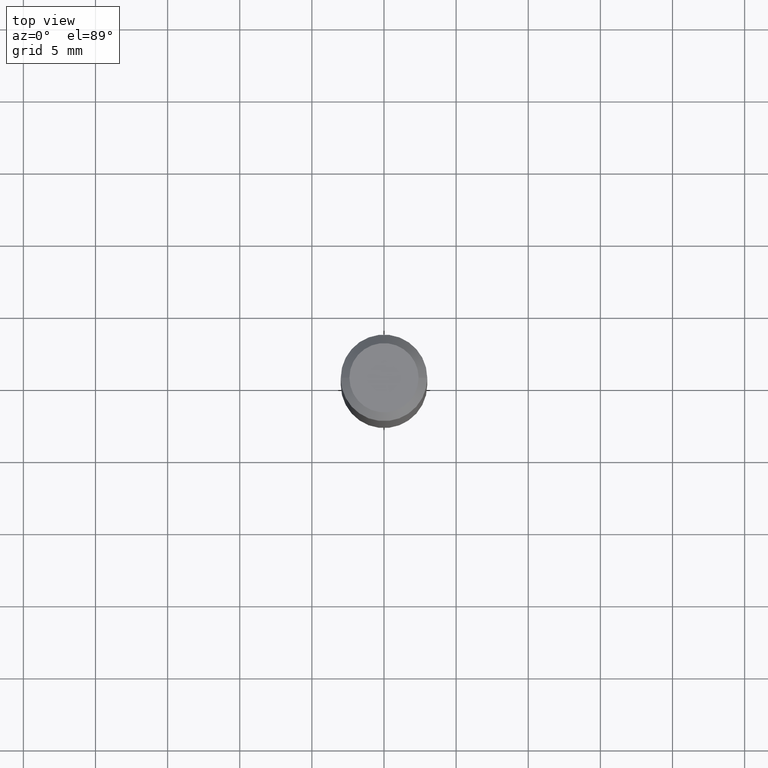
[diagram: clean part render]
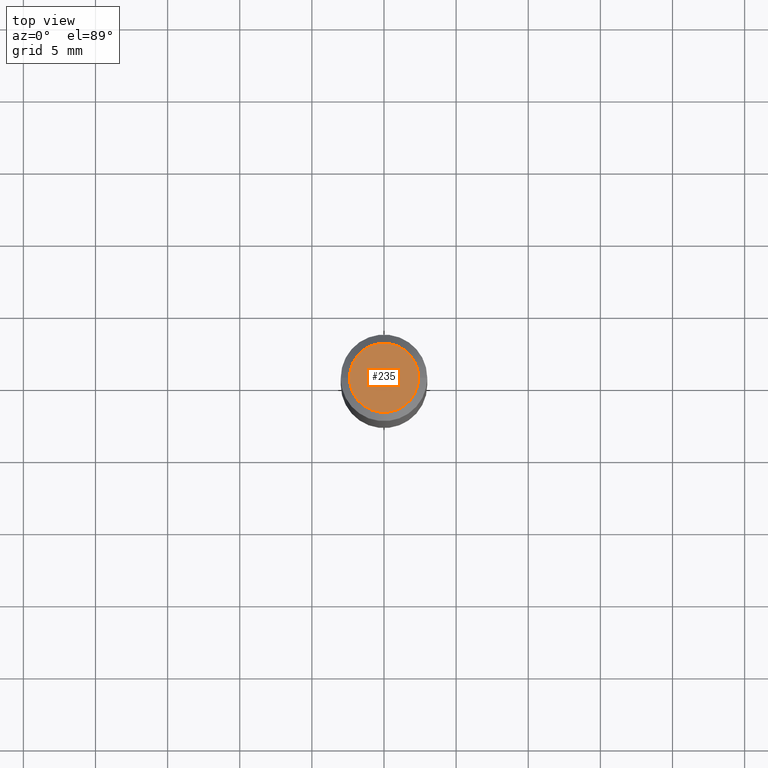
[diagram: same view with one face highlighted and labeled with its STEP entity id]
A machine part, top view. The second image highlights one B-rep face of the part: STEP entity #235.
In plain terms, the highlighted planar face has unit normal (0, -0, -1).
Its self-contained STEP definition (entity closure, byte-faithful):
#34 = DIRECTION ( 'NONE',  ( 2.438088387897960049E-29, -3.491481338843145188E-15, -1.000000000000000000 ) ) ;
#35 = FACE_OUTER_BOUND ( 'NONE', #495, .T. ) ;
#80 = DIRECTION ( 'NONE',  ( 1.000000000000000000, -6.982962677686267499E-15, 4.875432709231658792E-29 ) ) ;
#92 = ORIENTED_EDGE ( 'NONE', *, *, #191, .T. ) ;
#111 = DIRECTION ( 'NONE',  ( -2.445468806185136597E-29, 3.491481338843145583E-15, 1.000000000000000000 ) ) ;
#124 = AXIS2_PLACEMENT_3D ( 'NONE', #518, #353, #80 ) ;
#127 = ORIENTED_EDGE ( 'NONE', *, *, #378, .T. ) ;
#135 = CARTESIAN_POINT ( 'NONE',  ( -0.09447999999999998066, 7.009847083995354710E-16, -3.085620075132147757E-17 ) ) ;
#191 = EDGE_CURVE ( 'NONE', #251, #487, #248, .T. ) ;
#194 = CARTESIAN_POINT ( 'NONE',  ( 0.09447999999999998066, -7.704367267948738690E-16, -3.085620075131172158E-17 ) ) ;
#235 = ADVANCED_FACE ( 'NONE', ( #35 ), #387, .F. ) ;
#248 = CIRCLE ( 'NONE', #382, 0.09447999999999998066 ) ;
#251 = VERTEX_POINT ( 'NONE', #194 ) ;
#270 = CARTESIAN_POINT ( 'NONE',  ( 3.772893820736570314E-46, -5.386692455541008845E-32, -1.542810037565835988E-17 ) ) ;
#301 = CARTESIAN_POINT ( 'NONE',  ( 7.545787641473140628E-46, -1.077338491108201769E-31, -3.085620075131671975E-17 ) ) ;
#348 = DIRECTION ( 'NONE',  ( -1.000000000000000000, 6.982962677686265922E-15, -4.876176775795935793E-29 ) ) ;
#353 = DIRECTION ( 'NONE',  ( -2.445468806185136597E-29, 3.491481338843145583E-15, 1.000000000000000000 ) ) ;
#378 = EDGE_CURVE ( 'NONE', #487, #251, #453, .T. ) ;
#382 = AXIS2_PLACEMENT_3D ( 'NONE', #301, #111, #384 ) ;
#384 = DIRECTION ( 'NONE',  ( 1.000000000000000000, -6.982962677686267499E-15, 4.875432709231658792E-29 ) ) ;
#387 = PLANE ( 'NONE',  #491 ) ;
#453 = CIRCLE ( 'NONE', #124, 0.09447999999999998066 ) ;
#487 = VERTEX_POINT ( 'NONE', #135 ) ;
#491 = AXIS2_PLACEMENT_3D ( 'NONE', #270, #34, #348 ) ;
#495 = EDGE_LOOP ( 'NONE', ( #127, #92 ) ) ;
#518 = CARTESIAN_POINT ( 'NONE',  ( 7.545787641473140628E-46, -1.077338491108201769E-31, -3.085620075131671975E-17 ) ) ;